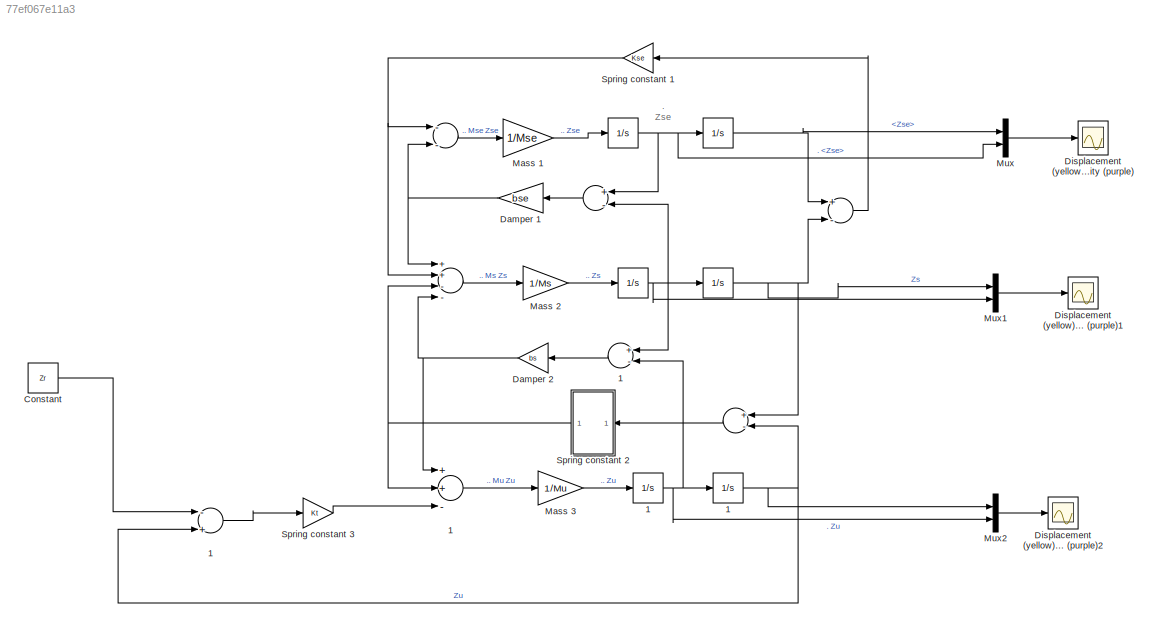
MODEL slx_77ef067e11a3
KIND model
CONFIG AbsTol = auto
CONFIG EnableMultiTasking = off
CONFIG FixedStep = 0.00000001
CONFIG MaxStep = auto
CONFIG MinStep = auto
CONFIG RelTol = 1e-3
CONFIG SampleTimeConstraint = Unconstrained
CONFIG Solver = ode4
CONFIG SolverName = ode4
CONFIG StartTime = 0.0
CONFIG StopTime = 10.0
BLOCK [Integrator]  
  Ports = [1, 1]
BLOCK [Sum]   
  InputSameDT = off
  Inputs = +-
  OutDataTypeStr = Inherit: Inherit via internal rule
  Ports = [2, 1]
  SaturateOnIntegerOverflow = off
BLOCK [Integrator]      
  Ports = [1, 1]
BLOCK [Sum]       
  InputSameDT = off
  Inputs = ++--
  OutDataTypeStr = Inherit: Inherit via internal rule
  Ports = [4, 1]
  SaturateOnIntegerOverflow = off
BLOCK [Sum]        
  InputSameDT = off
  Inputs = --
  OutDataTypeStr = Inherit: Inherit via internal rule
  Ports = [2, 1]
  SaturateOnIntegerOverflow = off
BLOCK [Sum]         
  InputSameDT = off
  Inputs = +-
  OutDataTypeStr = Inherit: Inherit via internal rule
  Ports = [2, 1]
  SaturateOnIntegerOverflow = off
BLOCK [Integrator]          
  Ports = [1, 1]
BLOCK [Integrator]           
  Ports = [1, 1]
BLOCK [Sum]              
  InputSameDT = off
  Inputs = +-
  OutDataTypeStr = Inherit: Inherit via internal rule
  Ports = [2, 1]
  SaturateOnIntegerOverflow = off
BLOCK [Sum]              1
  InputSameDT = off
  Inputs = +-
  OutDataTypeStr = Inherit: Inherit via internal rule
  Ports = [2, 1]
  SaturateOnIntegerOverflow = off
BLOCK [Integrator]           1
  Ports = [1, 1]
BLOCK [Integrator]          1
  Ports = [1, 1]
BLOCK [Sum]        1
  InputSameDT = off
  Inputs = -+
  OutDataTypeStr = Inherit: Inherit via internal rule
  Ports = [2, 1]
  SaturateOnIntegerOverflow = off
BLOCK [Sum]       1
  InputSameDT = off
  Inputs = ++-
  OutDataTypeStr = Inherit: Inherit via internal rule
  Ports = [3, 1]
  SaturateOnIntegerOverflow = off
BLOCK [Constant] Constant
  Value = Zr
BLOCK [Gain] Damper 1
  Gain = bse
  OutDataTypeStr = Inherit: Inherit via internal rule
  ParamDataTypeStr = Inherit: Inherit via internal rule
  SaturateOnIntegerOverflow = off
BLOCK [Gain] Damper 2
  Gain = bs
  OutDataTypeStr = Inherit: Inherit via internal rule
  ParamDataTypeStr = Inherit: Inherit via internal rule
  SaturateOnIntegerOverflow = off
BLOCK [Scope] Displacement (yellow) Velocity (purple)
  Floating = off
  NumInputPorts = 1
  Ports = [1]
  ScopeSpecificationString = Simulink.scopes.TimeScopeBlockCfg('CurrentConfiguration', extmgr.ConfigurationSet(extmgr.Configuration('Core','General UI',true),extmgr.Configuration('Core','Source UI',true),extmgr.Configuration('Sources','WiredSimulink',true,'DataLoggingVariableName','ScopeData1','DataLoggingSaveFormat','StructureWithTime','DataLoggingLimitDataPoints',true,'DataLoggingDecimation','1','DataLoggingDecimateData',tr...<+1554ch>
BLOCK [Scope] Displacement (yellow) Velocity (purple)1
  Floating = off
  NumInputPorts = 1
  Ports = [1]
  ScopeSpecificationString = Simulink.scopes.TimeScopeBlockCfg('CurrentConfiguration', extmgr.ConfigurationSet(extmgr.Configuration('Core','General UI',true),extmgr.Configuration('Core','Source UI',true),extmgr.Configuration('Sources','WiredSimulink',true,'DataLoggingSaveFormat','StructureWithTime','DataLoggingLimitDataPoints',true,'DataLoggingDecimation','1','DataLoggingDecimateData',true,'DataLoggingVariableName','ScopeData...<+1688ch>
BLOCK [Scope] Displacement (yellow) Velocity (purple)2
  Floating = off
  NumInputPorts = 1
  Ports = [1]
  ScopeSpecificationString = Simulink.scopes.TimeScopeBlockCfg('CurrentConfiguration', extmgr.ConfigurationSet(extmgr.Configuration('Core','General UI',true),extmgr.Configuration('Core','Source UI',true),extmgr.Configuration('Sources','WiredSimulink',true,'DataLoggingSaveFormat','StructureWithTime','DataLoggingLimitDataPoints',true,'DataLoggingDecimation','1','DataLoggingDecimateData',true),extmgr.Configuration('Visuals','Tim...<+1639ch>
BLOCK [Gain] Mass 1
  Gain = 1/Mse
  OutDataTypeStr = Inherit: Inherit via internal rule
  ParamDataTypeStr = Inherit: Inherit via internal rule
  SaturateOnIntegerOverflow = off
BLOCK [Gain] Mass 2
  Gain = 1/Ms
  OutDataTypeStr = Inherit: Inherit via internal rule
  ParamDataTypeStr = Inherit: Inherit via internal rule
  SaturateOnIntegerOverflow = off
BLOCK [Gain] Mass 3
  Gain = 1/Mu
  OutDataTypeStr = Inherit: Inherit via internal rule
  ParamDataTypeStr = Inherit: Inherit via internal rule
  SaturateOnIntegerOverflow = off
BLOCK [Mux] Mux
  DisplayOption = bar
  Inputs = 2
  Ports = [2, 1]
BLOCK [Mux] Mux1
  DisplayOption = bar
  Inputs = 2
  Ports = [2, 1]
BLOCK [Mux] Mux2
  DisplayOption = bar
  Inputs = 2
  Ports = [2, 1]
BLOCK [Gain] Spring constant 1
  Gain = Kse
  OutDataTypeStr = Inherit: Inherit via internal rule
  ParamDataTypeStr = Inherit: Inherit via internal rule
  SaturateOnIntegerOverflow = off
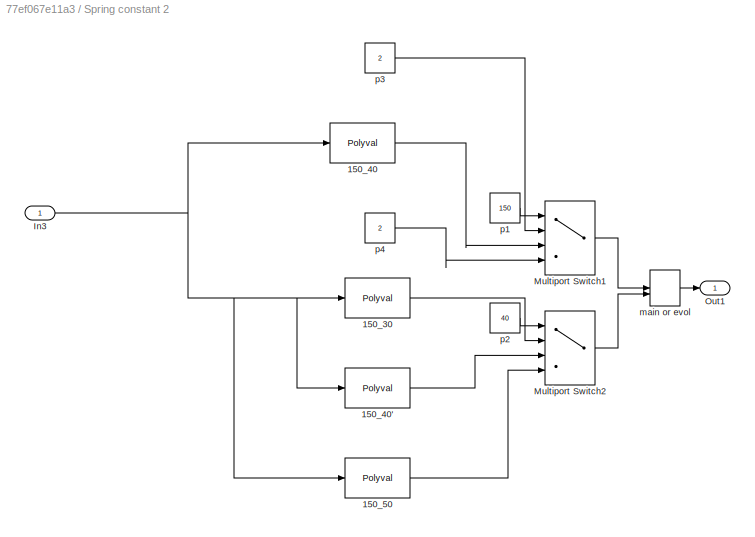
BLOCK [SubSystem] Spring constant 2
  Ports = [1, 1]
  RequestExecContextInheritance = off
BLOCK [Polyval] Spring constant 2/150_30
  Coefs = [ -5.674e+09*6, 1.562e+09*5, -1.485e+08*4, 6.452e+06*3, -1.365e+05*2, 3607 ]
BLOCK [Polyval] Spring constant 2/150_40
  Coefs = [ -4.597e+09*6, 1.259e+09*5, -1.21e+08*4, 5.755e+06*3, -1.495e+05*2, 4352 ]
BLOCK [Polyval] Spring constant 2/150_40'
  Coefs = [ -4.597e+09*6, 1.259e+09*5, -1.21e+08*4, 5.755e+06*3, -1.495e+05*2, 4352 ]
BLOCK [Polyval] Spring constant 2/150_50
  Coefs = [ -1.771e+09*6, 3.133e+08*5, -5.807e+06*4, -4.747e+05*3, 187.7*2, 3121 ]
BLOCK [Inport] Spring constant 2/In3
  IconDisplay = Port number
BLOCK [MultiPortSwitch] Spring constant 2/Multiport Switch1
  DataPortIndices = {200,150,100}
  DataPortOrder = Specify indices
  InputSameDT = off
  Ports = [4, 1]
  SaturateOnIntegerOverflow = off
BLOCK [MultiPortSwitch] Spring constant 2/Multiport Switch2
  DataPortIndices = {30,40,50}
  DataPortOrder = Specify indices
  InputSameDT = off
  Ports = [4, 1]
  SaturateOnIntegerOverflow = off
BLOCK [Outport] Spring constant 2/Out1
  IconDisplay = Port number
BLOCK [ManualSwitch] Spring constant 2/main or evol
  CurrentSetting = 0
BLOCK [Constant] Spring constant 2/p1
  Value = 150
BLOCK [Constant] Spring constant 2/p2
  Value = 40
BLOCK [Constant] Spring constant 2/p3
  Value = 2
BLOCK [Constant] Spring constant 2/p4
  Value = 2
BLOCK [Gain] Spring constant 3
  Gain = Kt
  OutDataTypeStr = Inherit: Inherit via internal rule
  ParamDataTypeStr = Inherit: Inherit via internal rule
  SaturateOnIntegerOverflow = off
ANNOTATION (root): . Zse
LINE              1:1 -> Damper 2:1
LINE              :1 -> Spring constant 2:1
NET           1:1 ->              :2,        1:2, Mux2:1
NET           :1 ->              :1,   :2, Mux1:1
NET          1:1 ->              1:2,           1:1, Mux2:2
NET          :1 ->              1:1,           :1,         :2, Mux1:2
LINE         :1 -> Damper 1:1
LINE        1:1 -> Spring constant 3:1
LINE        :1 -> Mass 1:1
LINE       1:1 -> Mass 3:1
LINE       :1 -> Mass 2:1
NET      :1 ->   :1, Mux:1
LINE   :1 -> Spring constant 1:1
NET  :1 ->         :1,      :1, Mux:2
LINE Constant:1 ->        1:1
NET Damper 1:1 ->        :2,       :1
NET Damper 2:1 ->       1:1,       :4
LINE Mass 1:1 ->  :1
LINE Mass 2:1 ->          :1
LINE Mass 3:1 ->          1:1
LINE Mux1:1 -> Displacement (yellow) Velocity (purple)1:1
LINE Mux2:1 -> Displacement (yellow) Velocity (purple)2:1
LINE Mux:1 -> Displacement (yellow) Velocity (purple):1
NET Spring constant 1:1 ->        :1,       :2
LINE Spring constant 2/150_30:1 -> Spring constant 2/Multiport Switch2:2
LINE Spring constant 2/150_40':1 -> Spring constant 2/Multiport Switch2:3
LINE Spring constant 2/150_40:1 -> Spring constant 2/Multiport Switch1:3
LINE Spring constant 2/150_50:1 -> Spring constant 2/Multiport Switch2:4
NET Spring constant 2/In3:1 -> Spring constant 2/150_30:1, Spring constant 2/150_40':1, Spring constant 2/150_40:1, Spring constant 2/150_50:1
LINE Spring constant 2/Multiport Switch1:1 -> Spring constant 2/main or evol:1
LINE Spring constant 2/Multiport Switch2:1 -> Spring constant 2/main or evol:2
LINE Spring constant 2/main or evol:1 -> Spring constant 2/Out1:1
LINE Spring constant 2/p1:1 -> Spring constant 2/Multiport Switch1:1
LINE Spring constant 2/p2:1 -> Spring constant 2/Multiport Switch2:1
LINE Spring constant 2/p3:1 -> Spring constant 2/Multiport Switch1:2
LINE Spring constant 2/p4:1 -> Spring constant 2/Multiport Switch1:4
NET Spring constant 2:1 ->       1:2,       :3
LINE Spring constant 3:1 ->       1:3
note: NET lines group one-source signal fan-out (src -> all destinations, sorted); 1:1 wires keep LINE
